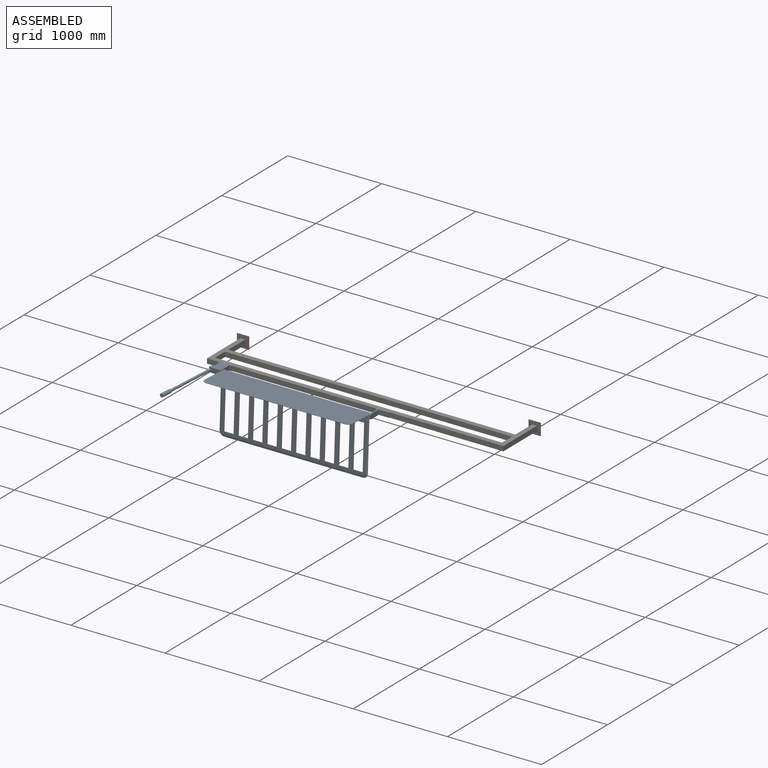
[diagram: assembled view]
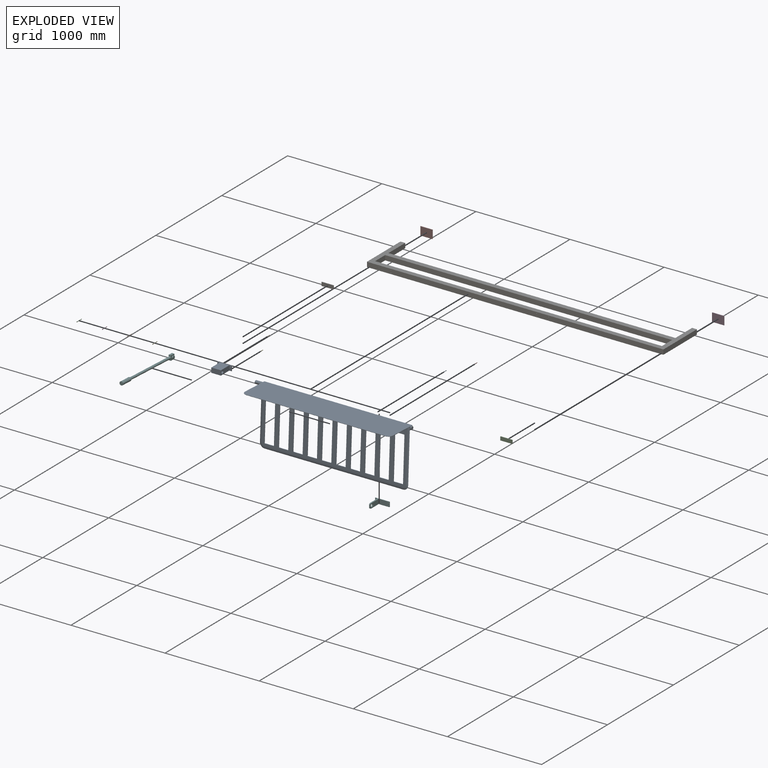
[diagram: exploded view]
GUIDED TOUR — MATED ASSEMBLY (Onshape document e687ba58ba35d8fcf52952bf, AutoMate assembly e687ba58ba35d8fcf52952bf_ee7e8cd8b29e687c3a9b3183_5fe067788b853b7fade614c0_default)

This assembly has 17 components, labeled P0..P16 below (a component is one placed occurrence of a part; the same part can appear more than once), held together by 21 mates. A mate is a constraint between two components; its type names the relative motion it leaves free:
  CYLINDRICAL — leaves both rotation about and translation along the listed axis free,
  FASTENED — locks the two components together rigidly (no relative motion),
  PLANAR — leaves sliding in the plane through the listed point (normal = the listed direction) and rotation about that normal free,
  SLIDER — leaves translation along the listed axis free.
Axis/direction vectors are unit vectors and 'through' points are millimeter coordinates, both in the assembly's world frame.

MATES
  1. FASTENED "Fastened 5": P11 <-> P6, direction (0.000, -1.000, 0.000) through (3124.20, 0.00, 50.80) mm
  2. CYLINDRICAL "Cylindrical 2": P6 <-> P13, axis (0.000, -1.000, 0.000) through (1803.40, -508.00, 12.70) mm
  3. FASTENED "Fastened 4": P10 <-> P11, direction (-1.000, 0.000, 0.000) through (3060.70, 0.00, 50.80) mm
  4. PLANAR "Planar 4": P0 <-> P13, direction (0.000, -1.000, 0.000) through (1803.40, -514.35, 12.70) mm
  5. PLANAR "Planar 3": P15 <-> P13, direction (0.000, 1.000, 0.000) through (1930.40, -514.35, 12.70) mm
  6. PLANAR "Planar 5": P1 <-> P13, direction (0.000, -1.000, 0.000) through (1803.40, -514.35, 38.10) mm
  7. PLANAR "Planar 11": P16 <-> P8, direction (1.000, 0.000, 0.000) through (241.30, -615.95, 25.40) mm
  8. CYLINDRICAL "Cylindrical 3": P8 <-> P16, axis (1.000, 0.000, 0.000) through (241.30, -615.95, 25.40) mm
  9. PLANAR "Planar 1": P6 <-> P8, direction (0.000, -1.000, 0.000) through (1575.67, -508.00, 25.40) mm
  10. CYLINDRICAL "Cylindrical 1": P13 <-> P6, axis (0.000, 1.000, 0.000) through (1930.40, -508.00, 38.10) mm
  11. PLANAR "Planar 10": P5 <-> P8, direction (1.000, 0.000, 0.000) through (139.70, -615.95, 25.40) mm
  12. PLANAR "Planar 7": P9 <-> P8, direction (0.000, -1.000, 0.000) through (127.00, -514.35, 12.70) mm
  13. PLANAR "Planar 6": P12 <-> P8, direction (0.000, -1.000, 0.000) through (254.00, -514.35, 12.70) mm
  14. PLANAR "Planar 9": P3 <-> P8, direction (0.000, -1.000, 0.000) through (254.00, -514.35, 38.10) mm
  15. SLIDER "Slider 1": P6 <-> P8, axis (0.000, -1.000, 0.000) through (254.00, -508.00, 38.10) mm
  16. FASTENED "Fastened 1": P7 <-> P14, direction (0.000, -1.000, 0.000) through (-38.10, 0.00, 50.80) mm
  17. FASTENED "Fastened 6": P5 <-> P16, direction (-1.000, 0.000, 0.000) through (114.30, -615.95, 25.40) mm
  18. PLANAR "Planar 2": P4 <-> P13, direction (0.000, 1.000, 0.000) through (1930.40, -514.35, 38.10) mm
  19. PLANAR "Planar 8": P2 <-> P8, direction (0.000, 1.000, 0.000) through (127.00, -514.35, 38.10) mm
  20. CYLINDRICAL "Cylindrical 4": P5 <-> P8, axis (-1.000, 0.000, 0.000) through (139.70, -615.95, 25.40) mm
  21. FASTENED "Fastened 3": P7 <-> P6, direction (0.000, -1.000, 0.000) through (-38.10, 0.00, -38.10) mm

ASSEMBLY ORDER
  1. P8 — the base component [order verified]
  2. P16 [order verified]
  3. P5 [order verified]
  4. P12 [order verified]
  5. P0 [order verified]
  6. P13 [order verified]
  7. P9 [order verified]
  8. P15 [order verified]
  9. P6 [order verified]
  10. P4 [order verified]
  11. P1 [order verified]
  12. P3 [order verified]
  13. P2 [order verified]
  14. P14 [order verified]
  15. P11 [order verified]
  16. P10 [order verified]
  17. P7 [order verified]
Order-tag legend:
  [order verified] — this step's position reverses a verified removal order: the component was checked to insert without passing through the ones already placed.

Of the 17 components, 12 carry the full construction recipe — the FeatureScript program that regenerates the part's solid from scratch; the rest are supplied as boundary geometry only.
Because this assembly has more than 12 components, the tour below covers the 12 most significant ones individually (every recipe-attached component first, then the largest by part volume), in assembly order; the remaining 5 are summarized together in a grouped section at the end.
Each toured component is shown spotlighted twice — in the assembled view, then in the exploded view, where a leader line traces a displaced component back to its assembled socket (saturated green if recipe-attached, orange if geometry-only; every other component desaturated gray) — followed by its recipe or geometry summary and the mates that hold it.
NOTE — document 2 of 2 of this assembly tour. The two overview renders and the header above are repeated from document 1; the component sections below continue where the previous document stopped.
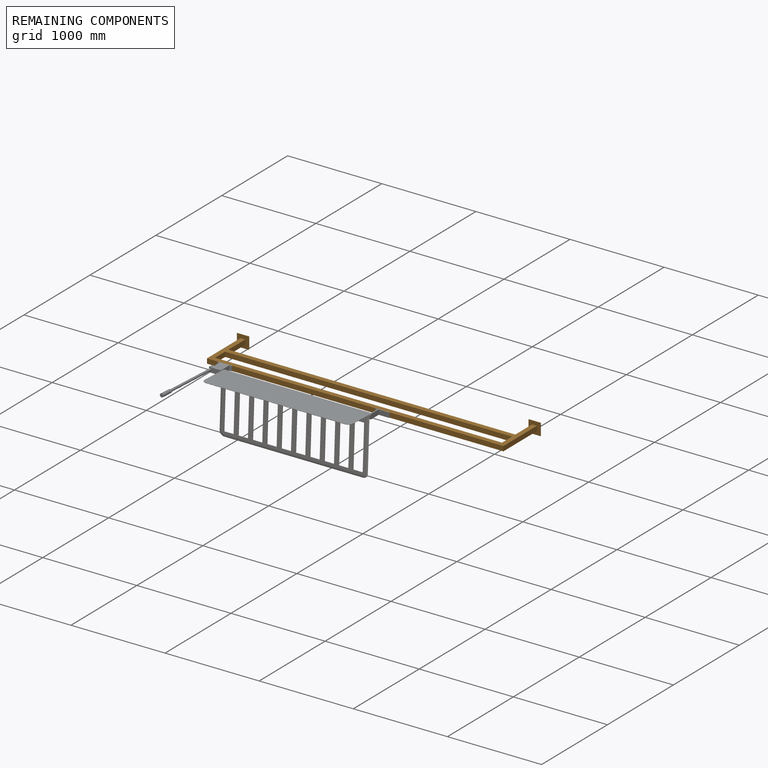
[diagram: remaining components — assembled]
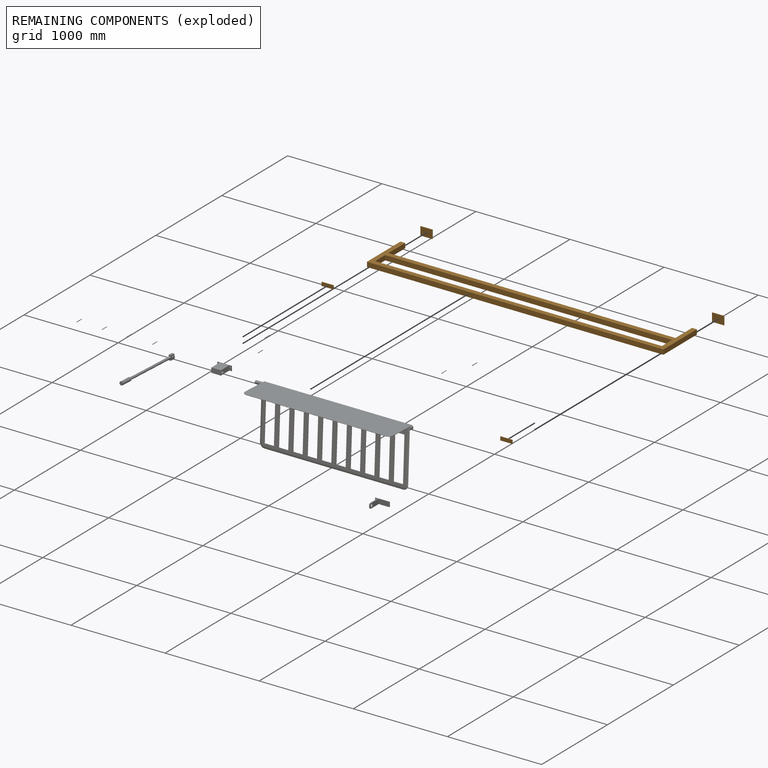
[diagram: remaining components — exploded]
REMAINING COMPONENTS (grouped) — the 5 components below fall outside the per-component tour by the significance rule stated above; both spotlight views highlight the whole group.
  P6: bounding box 3149.6 x 508.0 x 50.8 mm, volume 18340641 mm^3. Held by: FASTENED mate "Fastened 5" to P11; CYLINDRICAL mate "Cylindrical 2" to P13; PLANAR mate "Planar 1" to P8; CYLINDRICAL mate "Cylindrical 1" to P13; SLIDER mate "Slider 1" to P8; FASTENED mate "Fastened 3" to P7.
  P14: bounding box 127.0 x 38.1 x 6.4 mm, volume 30726 mm^3. Held by: FASTENED mate "Fastened 1" to P7.
  P11: bounding box 127.0 x 88.9 x 6.4 mm, volume 71693 mm^3. Held by: FASTENED mate "Fastened 5" to P6; FASTENED mate "Fastened 4" to P10.
  P10: bounding box 127.0 x 38.1 x 6.4 mm, volume 30726 mm^3. Held by: FASTENED mate "Fastened 4" to P11.
  P7: bounding box 127.0 x 88.9 x 6.4 mm, volume 71693 mm^3. Held by: FASTENED mate "Fastened 1" to P14; FASTENED mate "Fastened 3" to P6.
PROVENANCE & LICENSES
Assembly (occurrences, transforms, mates, per-part STEP geometry): AutoMate dataset, Zenodo record 7776208, CC0.
Construction recipes: CADFS (HuggingFace VladPyatov/CADFS, CC-BY-4.0, layered over the ABC dataset), FeatureScript reconstruction programs keyed by ABC model id.
Join: ABC meta listings map ABC model id -> Onshape documentId; within a shared document, parts are matched by geometric signature (bounding-box dims + volume at 0.1% relative tolerance, exact B-rep face/solid counts).
Verification: 12 of this assembly's 17 components carry a recipe attachment, and every attachment is mesh-verified: the CADFS STEP and the AutoMate member STEP were compared as meshes in their shared local frame (symmetric sampled-point-to-mesh distance); worst across the 12 attachments: below the mesh-comparison resolution (tessellation chordal tolerance ~2.71 mm) on a 1805 mm part.
Renders: orthographic iso camera (az 35 / el 25); the floor grid conveys scale (grid pitch printed in each image; no ruler). In the exploded view each component is displaced by its stored offset vector: the offsets alone carry the explosion direction (mate normal/axis signs are not orientation cues and do not encode it), and separation distances are assigned per mate-chain, not proportionally to assembly-order depth.
